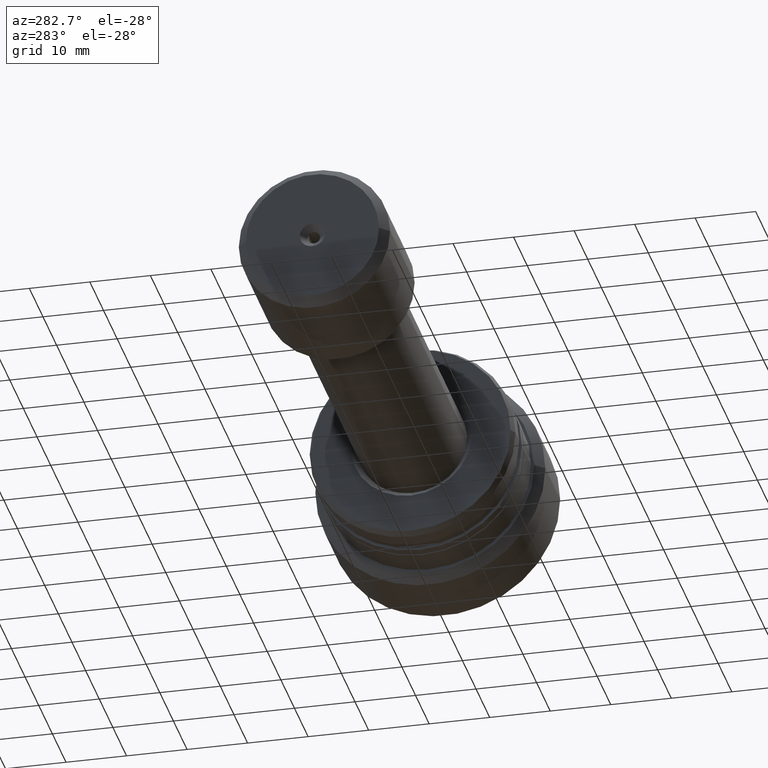
[diagram: clean part render]
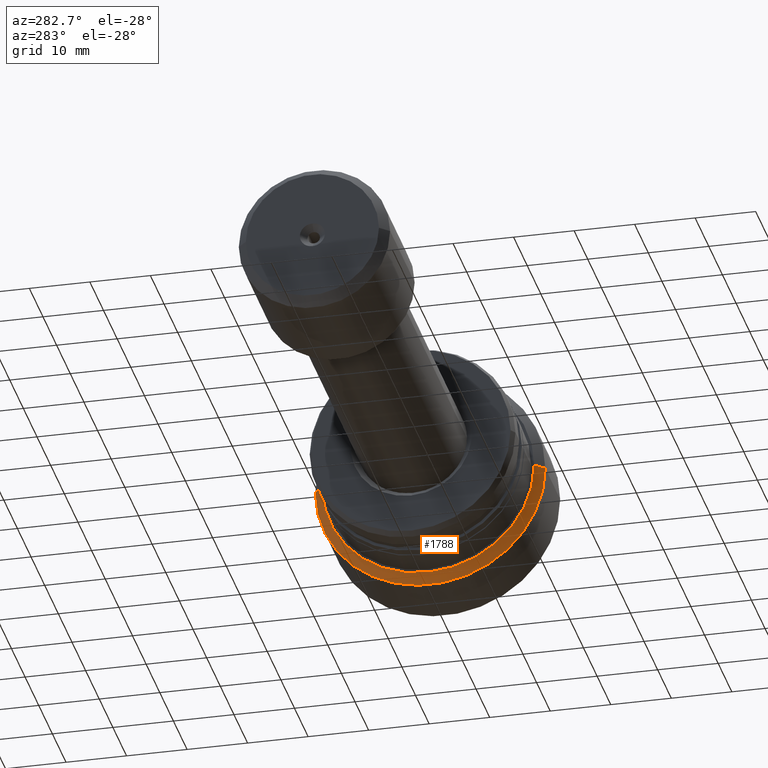
[diagram: same view with one face highlighted and labeled with its STEP entity id]
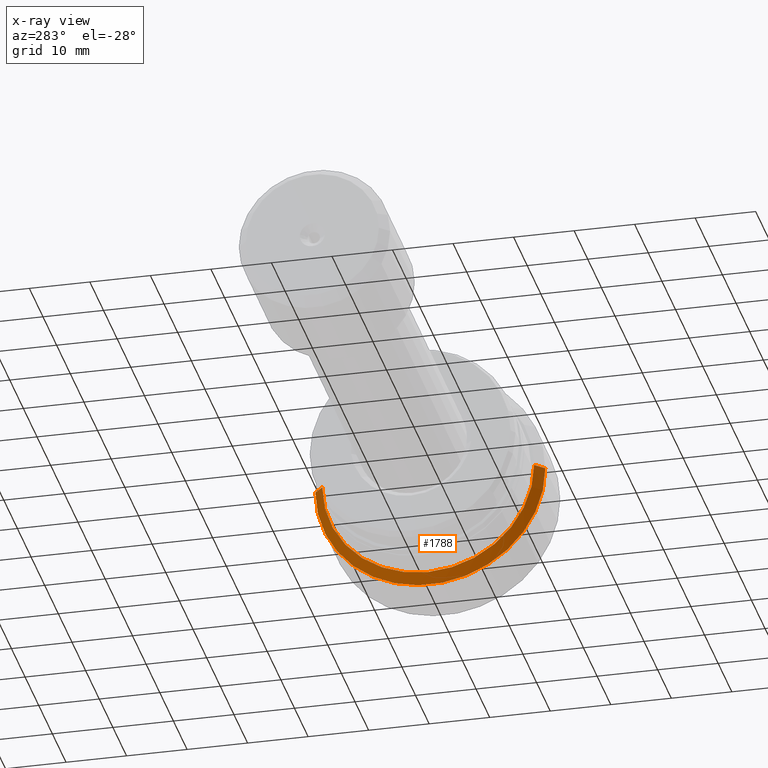
[diagram: x-ray of the same camera — body ghosted, the highlighted face saturated]
A machine part, auxiliary view. The second image highlights one B-rep face of the part: STEP entity #1788.
The next image is the same camera in x-ray: the body ghosted, the highlighted face saturated — about 1% of this face is hidden behind the body in this view.
In plain terms, the highlighted conical surface has half-angle 45 deg.
Its self-contained STEP definition (entity closure, byte-faithful):
#64 = CARTESIAN_POINT ( 'NONE',  ( -12.50000000000064837, 18.99999999999996447, 0.000000000000000000 ) ) ;
#97 = DIRECTION ( 'NONE',  ( -9.912705577009943938E-16, -1.000000000000000000, 0.000000000000000000 ) ) ;
#121 = DIRECTION ( 'NONE',  ( -1.004313591354994318E-15, -1.000000000000000000, 0.000000000000000000 ) ) ;
#183 = CIRCLE ( 'NONE', #1100, 17.50000000000067502 ) ;
#242 = CARTESIAN_POINT ( 'NONE',  ( -13.99999999999996447, 17.50000000000065725, 0.000000000000000000 ) ) ;
#267 = VECTOR ( 'NONE', #2123, 1000.000000000000114 ) ;
#276 = CARTESIAN_POINT ( 'NONE',  ( -13.99999999999996447, 17.50000000000065725, 0.000000000000000000 ) ) ;
#308 = CARTESIAN_POINT ( 'NONE',  ( -12.50000000000066613, -1.744234796788965300E-14, 0.000000000000000000 ) ) ;
#321 = DIRECTION ( 'NONE',  ( -1.000000000000000000, 9.810081908519753690E-16, -0.000000000000000000 ) ) ;
#473 = EDGE_LOOP ( 'NONE', ( #1240, #2127, #1170, #1403 ) ) ;
#579 = EDGE_CURVE ( 'NONE', #725, #1931, #849, .T. ) ;
#614 = EDGE_CURVE ( 'NONE', #2399, #1931, #1440, .T. ) ;
#725 = VERTEX_POINT ( 'NONE', #1720 ) ;
#771 = CARTESIAN_POINT ( 'NONE',  ( -12.50000000000068567, -19.00000000000000711, 2.326828918379969393E-15 ) ) ;
#777 = VECTOR ( 'NONE', #1014, 999.9999999999998863 ) ;
#796 = CONICAL_SURFACE ( 'NONE', #2386, 17.50000000000067502, 0.7853981633974471688 ) ;
#842 = DIRECTION ( 'NONE',  ( -1.000000000000000000, 9.810081908519753690E-16, -0.000000000000000000 ) ) ;
#849 = LINE ( 'NONE', #2192, #777 ) ;
#1014 = DIRECTION ( 'NONE',  ( 0.7071067811865477948, -0.7071067811865473507, 8.659560562354924230E-17 ) ) ;
#1094 = DIRECTION ( 'NONE',  ( 1.000000000000000000, -9.810081908519753690E-16, 0.000000000000000000 ) ) ;
#1100 = AXIS2_PLACEMENT_3D ( 'NONE', #1774, #842, #97 ) ;
#1170 = ORIENTED_EDGE ( 'NONE', *, *, #2414, .T. ) ;
#1240 = ORIENTED_EDGE ( 'NONE', *, *, #579, .F. ) ;
#1285 = DIRECTION ( 'NONE',  ( 9.912705577009943938E-16, 1.000000000000000000, 0.000000000000000000 ) ) ;
#1356 = LINE ( 'NONE', #276, #267 ) ;
#1403 = ORIENTED_EDGE ( 'NONE', *, *, #614, .T. ) ;
#1423 = VERTEX_POINT ( 'NONE', #242 ) ;
#1440 = CIRCLE ( 'NONE', #1716, 18.99999999999998579 ) ;
#1627 = EDGE_CURVE ( 'NONE', #1423, #725, #183, .T. ) ;
#1716 = AXIS2_PLACEMENT_3D ( 'NONE', #308, #321, #121 ) ;
#1720 = CARTESIAN_POINT ( 'NONE',  ( -13.99999999999999822, -17.50000000000069278, 2.234980408443960236E-15 ) ) ;
#1774 = CARTESIAN_POINT ( 'NONE',  ( -13.99999999999998046, -1.597083568161236364E-14, 0.000000000000000000 ) ) ;
#1788 = ADVANCED_FACE ( 'NONE', ( #2239 ), #796, .T. ) ;
#1931 = VERTEX_POINT ( 'NONE', #771 ) ;
#2059 = CARTESIAN_POINT ( 'NONE',  ( -13.99999999999998046, -1.597083568161236364E-14, 0.000000000000000000 ) ) ;
#2123 = DIRECTION ( 'NONE',  ( 0.7071067811865489050, 0.7071067811865460184, 0.000000000000000000 ) ) ;
#2127 = ORIENTED_EDGE ( 'NONE', *, *, #1627, .F. ) ;
#2192 = CARTESIAN_POINT ( 'NONE',  ( -13.99999999999999822, -17.50000000000069278, 2.143131898507950684E-15 ) ) ;
#2239 = FACE_OUTER_BOUND ( 'NONE', #473, .T. ) ;
#2386 = AXIS2_PLACEMENT_3D ( 'NONE', #2059, #1094, #1285 ) ;
#2399 = VERTEX_POINT ( 'NONE', #64 ) ;
#2414 = EDGE_CURVE ( 'NONE', #1423, #2399, #1356, .T. ) ;